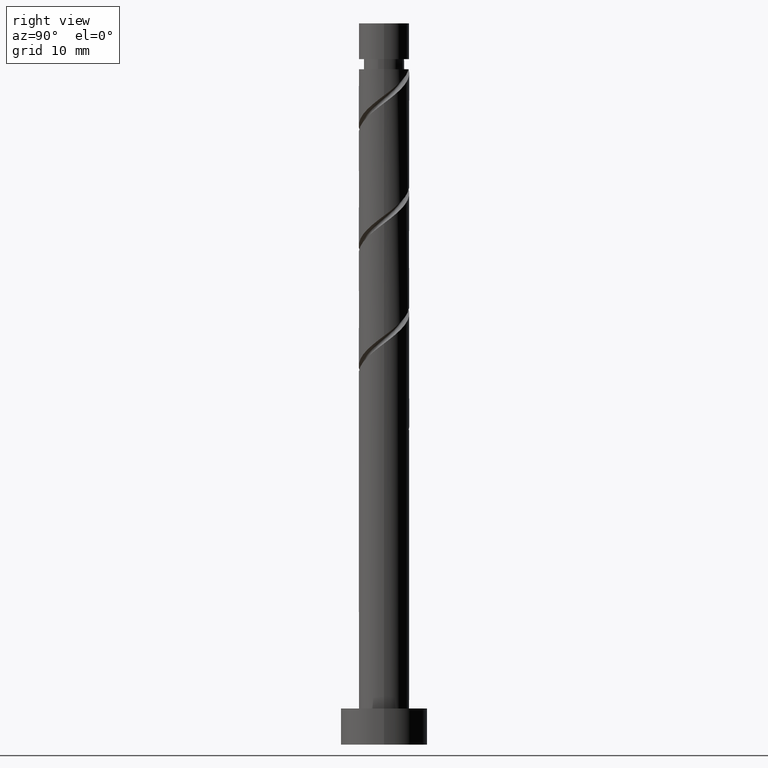
[diagram: clean part render]
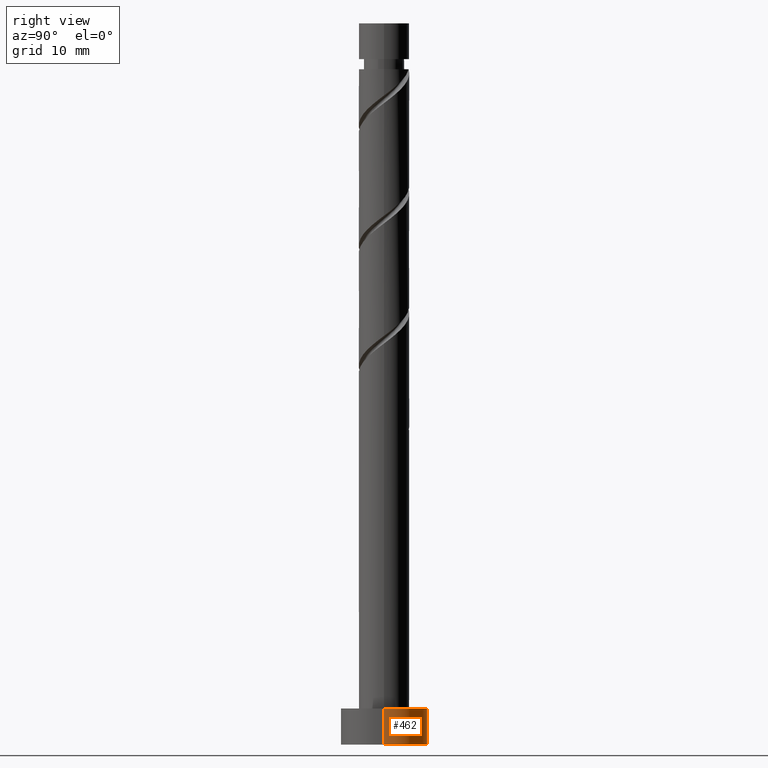
[diagram: same view with one face highlighted and labeled with its STEP entity id]
A machine part, right view. The second image highlights one B-rep face of the part: STEP entity #462.
In plain terms, the highlighted cylindrical surface (partial cylindrical patch) has radius 6 mm, axis along (-0, -0, -1).
Its self-contained STEP definition (entity closure, byte-faithful):
#3 = CARTESIAN_POINT ( 'NONE',  ( 6.000000000000000888, 7.347880794884120722E-16, 0.000000000000000000 ) ) ;
#66 = AXIS2_PLACEMENT_3D ( 'NONE', #1282, #1392, #345 ) ;
#94 = ORIENTED_EDGE ( 'NONE', *, *, #571, .F. ) ;
#107 = LINE ( 'NONE', #330, #201 ) ;
#168 = VERTEX_POINT ( 'NONE', #3 ) ;
#201 = VECTOR ( 'NONE', #781, 1000.000000000000000 ) ;
#273 = CARTESIAN_POINT ( 'NONE',  ( 6.000000000000000888, 7.347880794884120722E-16, 5.000000000000000000 ) ) ;
#277 = VERTEX_POINT ( 'NONE', #982 ) ;
#330 = CARTESIAN_POINT ( 'NONE',  ( -6.000000000000000888, 0.000000000000000000, 5.000000000000000000 ) ) ;
#342 = ORIENTED_EDGE ( 'NONE', *, *, #1143, .T. ) ;
#345 = DIRECTION ( 'NONE',  ( -1.000000000000000000, 0.000000000000000000, 0.000000000000000000 ) ) ;
#382 = CIRCLE ( 'NONE', #1046, 6.000000000000000888 ) ;
#454 = FACE_OUTER_BOUND ( 'NONE', #846, .T. ) ;
#462 = ADVANCED_FACE ( 'NONE', ( #454 ), #898, .T. ) ;
#499 = VECTOR ( 'NONE', #729, 1000.000000000000000 ) ;
#571 = EDGE_CURVE ( 'NONE', #1197, #1379, #382, .T. ) ;
#639 = EDGE_CURVE ( 'NONE', #1197, #168, #1192, .T. ) ;
#673 = CARTESIAN_POINT ( 'NONE',  ( -6.000000000000000888, 0.000000000000000000, 5.000000000000000000 ) ) ;
#675 = DIRECTION ( 'NONE',  ( 0.000000000000000000, 0.000000000000000000, 1.000000000000000000 ) ) ;
#729 = DIRECTION ( 'NONE',  ( -0.000000000000000000, -0.000000000000000000, -1.000000000000000000 ) ) ;
#731 = ORIENTED_EDGE ( 'NONE', *, *, #639, .T. ) ;
#781 = DIRECTION ( 'NONE',  ( -0.000000000000000000, -0.000000000000000000, -1.000000000000000000 ) ) ;
#846 = EDGE_LOOP ( 'NONE', ( #94, #731, #342, #1327 ) ) ;
#898 = CYLINDRICAL_SURFACE ( 'NONE', #66, 6.000000000000000888 ) ;
#902 = DIRECTION ( 'NONE',  ( 1.000000000000000000, 0.000000000000000000, 0.000000000000000000 ) ) ;
#960 = DIRECTION ( 'NONE',  ( 0.000000000000000000, 0.000000000000000000, 1.000000000000000000 ) ) ;
#982 = CARTESIAN_POINT ( 'NONE',  ( -6.000000000000000888, 0.000000000000000000, 0.000000000000000000 ) ) ;
#1024 = CARTESIAN_POINT ( 'NONE',  ( 6.000000000000000888, 7.347880794884120722E-16, 5.000000000000000000 ) ) ;
#1046 = AXIS2_PLACEMENT_3D ( 'NONE', #1206, #960, #1311 ) ;
#1143 = EDGE_CURVE ( 'NONE', #168, #277, #1151, .T. ) ;
#1151 = CIRCLE ( 'NONE', #1241, 6.000000000000000888 ) ;
#1192 = LINE ( 'NONE', #273, #499 ) ;
#1197 = VERTEX_POINT ( 'NONE', #1024 ) ;
#1206 = CARTESIAN_POINT ( 'NONE',  ( 0.000000000000000000, 0.000000000000000000, 5.000000000000000000 ) ) ;
#1241 = AXIS2_PLACEMENT_3D ( 'NONE', #1285, #675, #902 ) ;
#1282 = CARTESIAN_POINT ( 'NONE',  ( 0.000000000000000000, 0.000000000000000000, 5.000000000000000000 ) ) ;
#1285 = CARTESIAN_POINT ( 'NONE',  ( 0.000000000000000000, 0.000000000000000000, 0.000000000000000000 ) ) ;
#1311 = DIRECTION ( 'NONE',  ( 1.000000000000000000, 0.000000000000000000, 0.000000000000000000 ) ) ;
#1327 = ORIENTED_EDGE ( 'NONE', *, *, #1393, .F. ) ;
#1379 = VERTEX_POINT ( 'NONE', #673 ) ;
#1392 = DIRECTION ( 'NONE',  ( -0.000000000000000000, -0.000000000000000000, -1.000000000000000000 ) ) ;
#1393 = EDGE_CURVE ( 'NONE', #1379, #277, #107, .T. ) ;